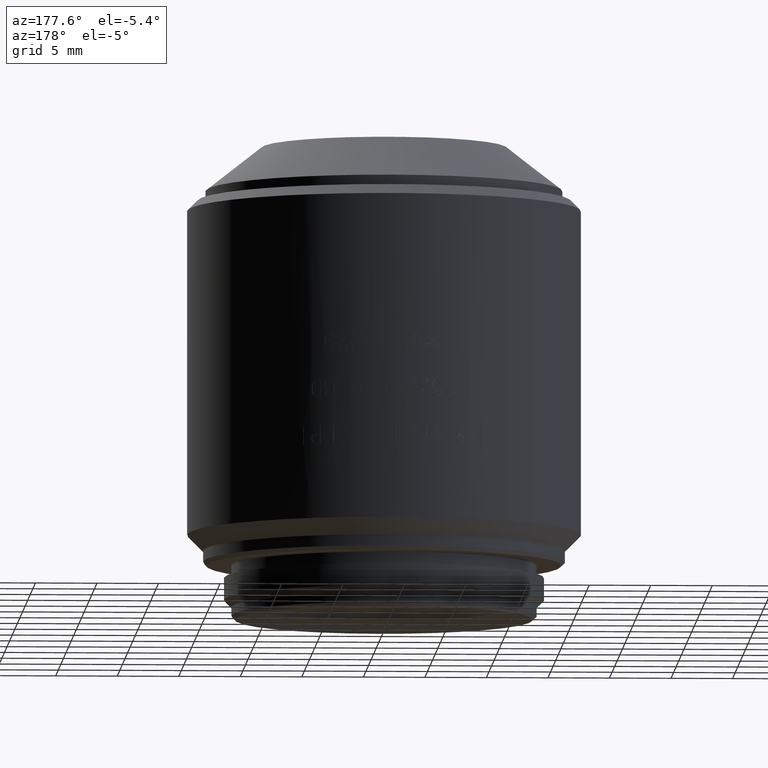
[diagram: clean part render]
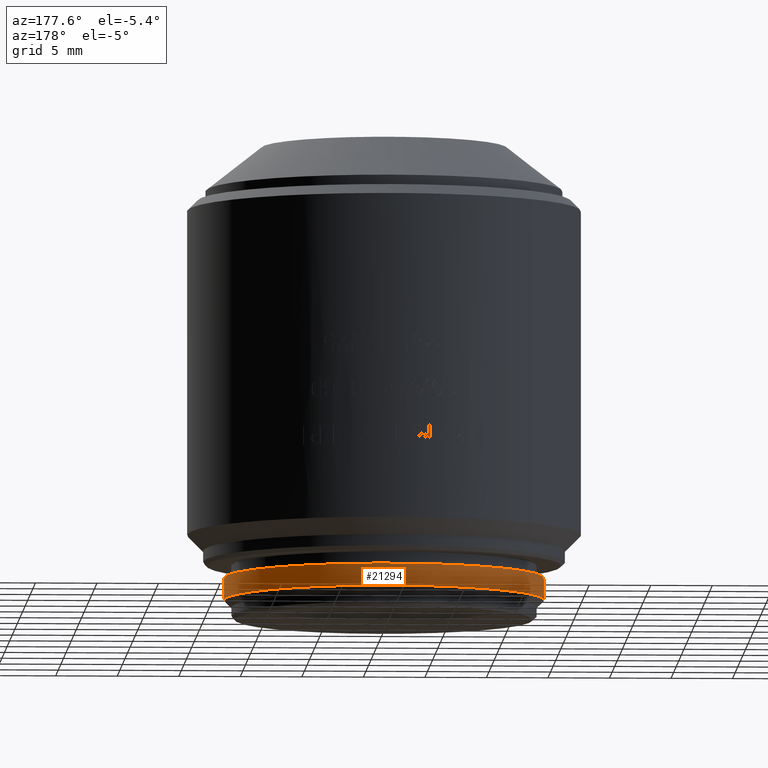
[diagram: same view with one face highlighted and labeled with its STEP entity id]
A machine part, auxiliary view. The second image highlights one B-rep face of the part: STEP entity #21294.
In plain terms, the highlighted cylindrical surface (partial cylindrical patch) has radius 13 mm, axis along (0, 0, -1).
Its self-contained STEP definition (entity closure, byte-faithful):
#1834 = ORIENTED_EDGE ( 'NONE', *, *, #4294, .F. ) ;
#4150 = EDGE_CURVE ( 'NONE', #23723, #23253, #16148, .T. ) ;
#4294 = EDGE_CURVE ( 'NONE', #23723, #13047, #7771, .T. ) ;
#5728 = EDGE_LOOP ( 'NONE', ( #1834, #22170, #22931, #21130 ) ) ;
#6378 = DIRECTION ( 'NONE',  ( 0.000000000000000000, 0.000000000000000000, -1.000000000000000000 ) ) ;
#6601 = CARTESIAN_POINT ( 'NONE',  ( 0.000000000000000000, 0.000000000000000000, 4.400000000000000355 ) ) ;
#6730 = DIRECTION ( 'NONE',  ( 0.000000000000000000, 0.000000000000000000, -1.000000000000000000 ) ) ;
#7771 = CIRCLE ( 'NONE', #13775, 13.00000000000000000 ) ;
#8011 = LINE ( 'NONE', #23201, #14754 ) ;
#8476 = FACE_OUTER_BOUND ( 'NONE', #5728, .T. ) ;
#9340 = CARTESIAN_POINT ( 'NONE',  ( 0.000000000000000000, 0.000000000000000000, 3.399999999999999911 ) ) ;
#9630 = CARTESIAN_POINT ( 'NONE',  ( 13.00000000000000000, 0.000000000000000000, 1.600000000000000089 ) ) ;
#10633 = CARTESIAN_POINT ( 'NONE',  ( -13.00000000000000000, 1.592040838891559095E-15, 1.600000000000000089 ) ) ;
#10718 = DIRECTION ( 'NONE',  ( 0.000000000000000000, 0.000000000000000000, -1.000000000000000000 ) ) ;
#11339 = VERTEX_POINT ( 'NONE', #10633 ) ;
#12481 = CARTESIAN_POINT ( 'NONE',  ( 13.00000000000000000, 1.592040838891559095E-15, 3.399999999999999911 ) ) ;
#13047 = VERTEX_POINT ( 'NONE', #17307 ) ;
#13775 = AXIS2_PLACEMENT_3D ( 'NONE', #9340, #24040, #24160 ) ;
#14259 = DIRECTION ( 'NONE',  ( -1.000000000000000000, 0.000000000000000000, 0.000000000000000000 ) ) ;
#14586 = VECTOR ( 'NONE', #6730, 1000.000000000000000 ) ;
#14754 = VECTOR ( 'NONE', #6378, 1000.000000000000000 ) ;
#15496 = EDGE_CURVE ( 'NONE', #13047, #11339, #8011, .T. ) ;
#16140 = CYLINDRICAL_SURFACE ( 'NONE', #23058, 13.00000000000000000 ) ;
#16148 = LINE ( 'NONE', #19784, #14586 ) ;
#16389 = CARTESIAN_POINT ( 'NONE',  ( 0.000000000000000000, 0.000000000000000000, 1.600000000000000089 ) ) ;
#17307 = CARTESIAN_POINT ( 'NONE',  ( -13.00000000000000000, 0.000000000000000000, 3.399999999999999911 ) ) ;
#18060 = EDGE_CURVE ( 'NONE', #23253, #11339, #20798, .T. ) ;
#19784 = CARTESIAN_POINT ( 'NONE',  ( 13.00000000000000000, 1.592040838891559095E-15, 4.400000000000000355 ) ) ;
#20798 = CIRCLE ( 'NONE', #24779, 13.00000000000000000 ) ;
#21130 = ORIENTED_EDGE ( 'NONE', *, *, #15496, .F. ) ;
#21294 = ADVANCED_FACE ( 'NONE', ( #8476 ), #16140, .T. ) ;
#22170 = ORIENTED_EDGE ( 'NONE', *, *, #4150, .T. ) ;
#22931 = ORIENTED_EDGE ( 'NONE', *, *, #18060, .T. ) ;
#23058 = AXIS2_PLACEMENT_3D ( 'NONE', #6601, #10718, #14259 ) ;
#23201 = CARTESIAN_POINT ( 'NONE',  ( -13.00000000000000000, 0.000000000000000000, 4.400000000000000355 ) ) ;
#23253 = VERTEX_POINT ( 'NONE', #9630 ) ;
#23723 = VERTEX_POINT ( 'NONE', #12481 ) ;
#23801 = DIRECTION ( 'NONE',  ( 0.000000000000000000, 0.000000000000000000, 1.000000000000000000 ) ) ;
#24037 = DIRECTION ( 'NONE',  ( -1.000000000000000000, 0.000000000000000000, 0.000000000000000000 ) ) ;
#24040 = DIRECTION ( 'NONE',  ( 0.000000000000000000, 0.000000000000000000, 1.000000000000000000 ) ) ;
#24160 = DIRECTION ( 'NONE',  ( -1.000000000000000000, 0.000000000000000000, 0.000000000000000000 ) ) ;
#24779 = AXIS2_PLACEMENT_3D ( 'NONE', #16389, #23801, #24037 ) ;